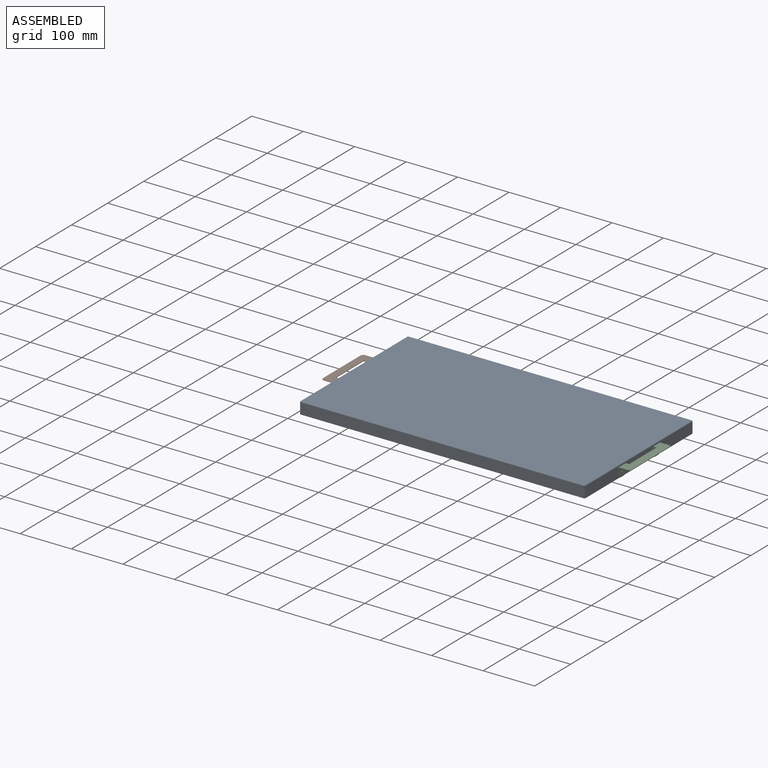
[diagram: assembled view]
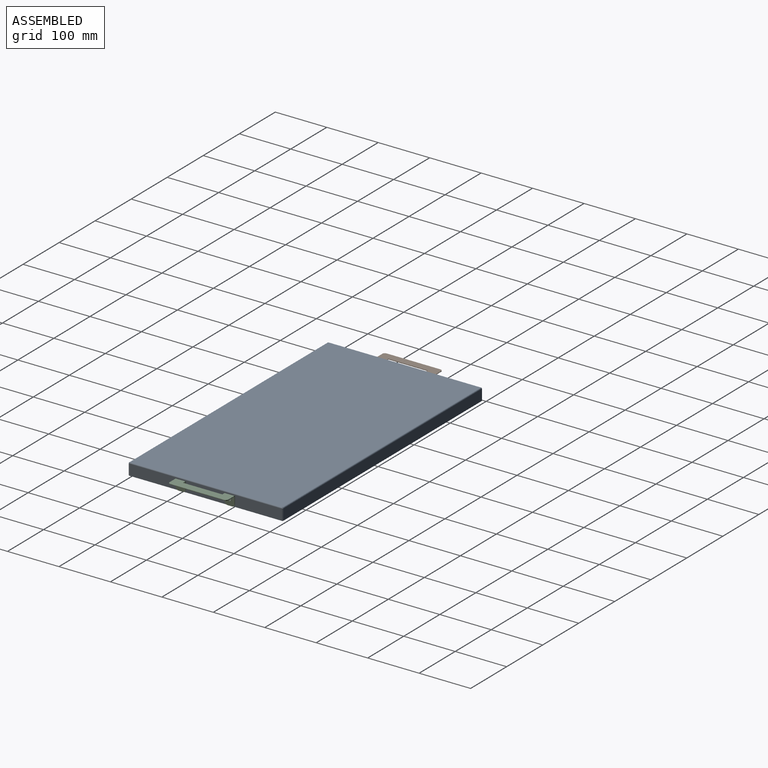
[diagram: assembled view, second angle]
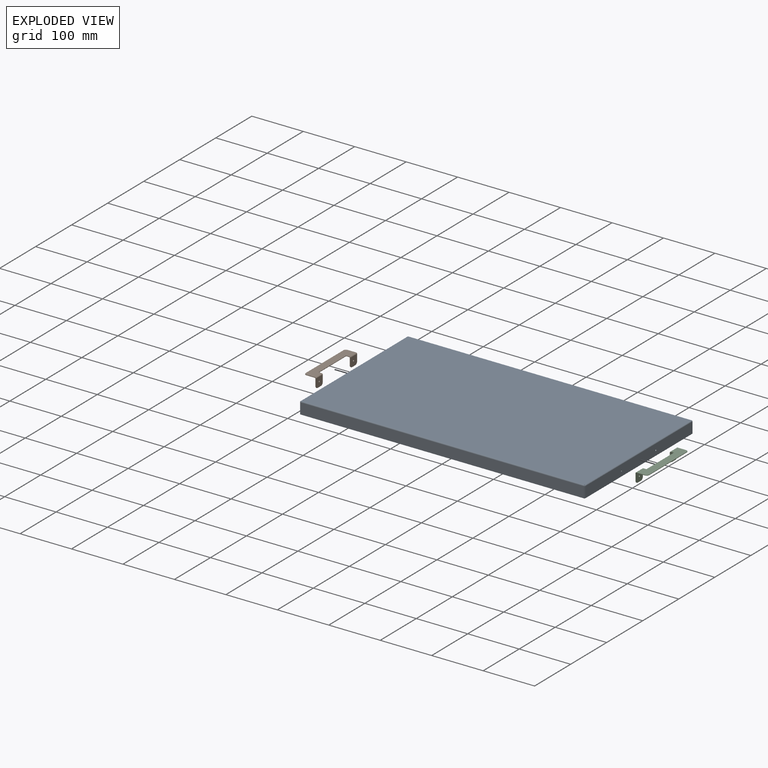
[diagram: exploded view]
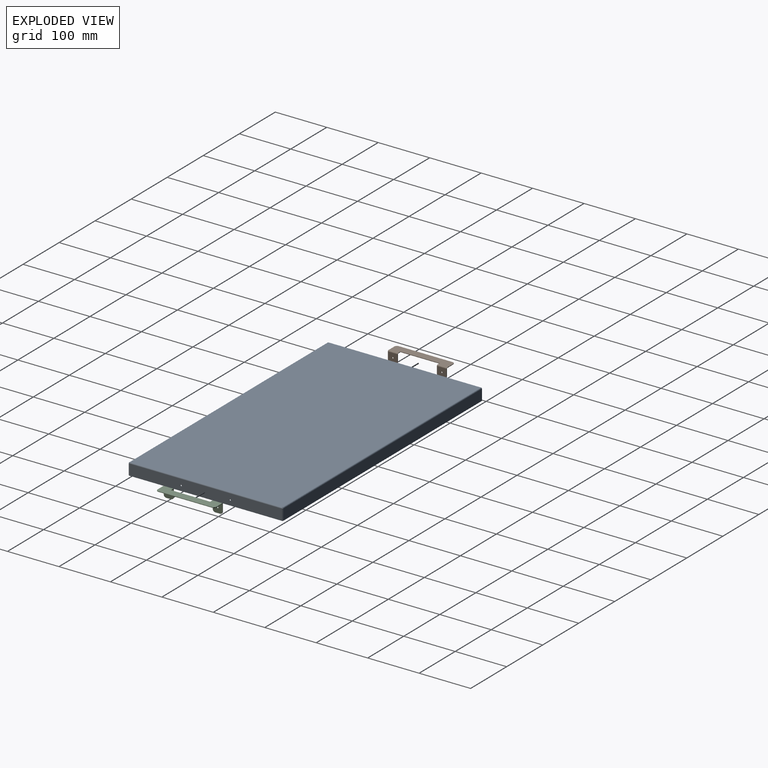
[diagram: exploded view, second angle]
ASSEMBLY  parts=3 mates=2
PART A: 46 faces, bbox 553.9x299.9x23.2 mm
  f0: plane 551.84x0.99mm, normal (0,0,1), area 546.7mm2, adj f1,f2,f3,f4
  f1: plane 21.23x0.99mm, normal (1,0,0), area 21mm2, adj f0,f3,f4,f43
  f2: plane 21.23x0.99mm, normal (-1,0,0), area 21mm2, adj f0,f3,f4,f42
  f3: plane 551.84x21.23mm, normal (0,1,0), area 11718mm2, adj f0,f1,f2,f44
  f4: plane 551.84x21.23mm, normal (0,-1,0), area 11718mm2, adj f0,f1,f2,f45
  f5: plane 549.91x295.91mm, normal (0,0,-1), area 162723.9mm2, adj f7,f8,f9,f10,f18,f29,f40,f44
  f6: plane 549.91x295.91mm, normal (0,0,1), area 162723.9mm2, adj f7,f8,f9,f10,f19,f30,f41,f45
  f7: plane 0.99x0.02mm, normal (0.71,-0.71,0), area 0mm2, adj f5,f6,f17,f27
  f8: plane 0.99x0.02mm, normal (-0.71,-0.71,0), area 0mm2, adj f5,f6,f16,f38
  f9: plane 0.99x0.02mm, normal (-0.71,0.71,0), area 0mm2, adj f5,f6,f39,f42
  f10: plane 0.99x0.02mm, normal (0.71,0.71,0), area 0mm2, adj f5,f6,f28,f43
  f11: plane 551.84x0.99mm, normal (0,0,1), area 546.7mm2, adj f12,f13,f14,f15
  f12: plane 21.23x0.99mm, normal (-1,0,0), area 21mm2, adj f11,f14,f15,f16
  f13: plane 21.23x0.99mm, normal (1,0,0), area 21mm2, adj f11,f14,f15,f17
  f14: plane 551.84x21.23mm, normal (0,-1,0), area 11718mm2, adj f11,f12,f13,f18
  f15: plane 551.84x21.23mm, normal (0,1,0), area 11718mm2, adj f11,f12,f13,f19
  f16: bspline ~1.98x1.98mm, area 2.6mm2, adj f8,f12,f18,f19
  f17: bspline ~1.98x1.98mm, area 2.6mm2, adj f7,f13,f18,f19
  f18: cylinder r=1.98mm len=551.84mm, axis (-1,0,0), area 1715.1mm2, adj f5,f14,f16,f17
  f19: cylinder r=0.99mm len=551.84mm, axis (-1,0,0), area 857.6mm2, adj f6,f15,f16,f17
  f20: plane 297.84x0.99mm, normal (0,0,1), area 295mm2, adj f21,f24,f25,f26
  f21: plane 21.23x0.99mm, normal (0,-1,0), area 21mm2, adj f20,f25,f26,f27
  f22: cylinder r=1.27mm len=2.54mm, axis (1,0,0), area 7.9mm2, adj f25,f26
  f23: cylinder r=1.27mm len=2.54mm, axis (1,0,0), area 7.9mm2, adj f25,f26
  f24: plane 21.23x0.99mm, normal (0,1,0), area 21mm2, adj f20,f25,f26,f28
  f25: plane 297.84x21.23mm, normal (1,0,0), area 6314.3mm2, adj f20,f21,f22,f23,f24,f29
  f26: plane 297.84x21.23mm, normal (-1,0,0), area 6314.3mm2, adj f20,f21,f22,f23,f24,f30
  f27: bspline ~1.98x1.98mm, area 2.6mm2, adj f7,f21,f29,f30
  f28: bspline ~1.98x1.98mm, area 2.6mm2, adj f10,f24,f29,f30
  f29: cylinder r=1.98mm len=297.84mm, axis (0,-1,0), area 924.7mm2, adj f5,f25,f27,f28
  f30: cylinder r=0.99mm len=297.84mm, axis (0,-1,0), area 462.3mm2, adj f6,f26,f27,f28
  f31: plane 297.84x0.99mm, normal (0,0,1), area 295mm2, adj f32,f35,f36,f37
  f32: plane 21.23x0.99mm, normal (0,1,0), area 21mm2, adj f31,f36,f37,f39
  f33: cylinder r=1.27mm len=2.54mm, axis (1,0,0), area 7.9mm2, adj f36,f37
  f34: cylinder r=1.27mm len=2.54mm, axis (1,0,0), area 7.9mm2, adj f36,f37
  f35: plane 21.23x0.99mm, normal (0,-1,0), area 21mm2, adj f31,f36,f37,f38
  f36: plane 297.84x21.23mm, normal (-1,0,0), area 6314.3mm2, adj f31,f32,f33,f34,f35,f40
  f37: plane 297.84x21.23mm, normal (1,0,0), area 6314.3mm2, adj f31,f32,f33,f34,f35,f41
  f38: bspline ~1.98x1.98mm, area 2.6mm2, adj f8,f35,f40,f41
  f39: bspline ~1.98x1.98mm, area 2.6mm2, adj f9,f32,f40,f41
  f40: cylinder r=1.98mm len=297.84mm, axis (0,-1,0), area 924.7mm2, adj f5,f36,f38,f39
  f41: cylinder r=0.99mm len=297.84mm, axis (0,-1,0), area 462.3mm2, adj f6,f37,f38,f39
  f42: bspline ~1.98x1.98mm, area 2.6mm2, adj f2,f9,f44,f45
  f43: bspline ~1.98x1.98mm, area 2.6mm2, adj f1,f10,f44,f45
  f44: cylinder r=1.98mm len=551.84mm, axis (-1,0,0), area 1715.1mm2, adj f3,f5,f42,f43
  f45: cylinder r=0.99mm len=551.84mm, axis (-1,0,0), area 857.6mm2, adj f4,f6,f42,f43
PART B: 34 faces, bbox 23.2x114.3x20 mm
  f0: plane 5.96x0.99mm, normal (0,-1,0), area 5.9mm2, adj f5,f6,f7,f19
  f1: plane 16.15x0.99mm, normal (0,1,0), area 16mm2, adj f6,f7,f8,f18
  f2: plane 104.14x0.99mm, normal (-1,0,0), area 103.2mm2, adj f6,f7,f8,f9
  f3: plane 16.15x0.99mm, normal (0,-1,0), area 16mm2, adj f6,f7,f9,f31
  f4: plane 5.96x0.99mm, normal (0,1,0), area 5.9mm2, adj f5,f6,f7,f30
  f5: plane 76.2x0.99mm, normal (1,0,0), area 75.5mm2, adj f0,f4,f6,f7
  f6: plane 114.3x21.23mm, normal (0,0,1), area 1962.1mm2, adj f0,f1,f2,f3,f4,f5,f8,f9
  f7: plane 114.3x21.23mm, normal (0,0,-1), area 1962.1mm2, adj f0,f1,f2,f3,f4,f5,f8,f9
  f8: cylinder r=5.08mm len=5.08mm, axis (0,0,-1), area 7.9mm2, adj f1,f2,f6,f7
  f9: cylinder r=5.08mm len=5.08mm, axis (0,0,1), area 7.9mm2, adj f2,f3,f6,f7
  f10: plane 8.89x0.99mm, normal (0,0,-1), area 8.8mm2, adj f14,f15,f16,f17
  f11: plane 12.98x0.99mm, normal (0,1,0), area 12.9mm2, adj f14,f15,f17,f18
  f12: cylinder r=1.27mm len=2.54mm, axis (-1,0,0), area 7.9mm2, adj f14,f15
  f13: plane 12.98x0.99mm, normal (0,-1,0), area 12.9mm2, adj f14,f15,f16,f19
  f14: plane 19.05x18.06mm, normal (1,0,0), area 327.9mm2, adj f10,f11,f12,f13,f16,f17,f20
  f15: plane 19.05x18.06mm, normal (-1,0,0), area 327.9mm2, adj f10,f11,f12,f13,f16,f17,f21
  f16: cylinder r=5.08mm len=5.08mm, axis (1,0,0), area 7.9mm2, adj f10,f13,f14,f15
  f17: cylinder r=5.08mm len=5.08mm, axis (1,0,0), area 7.9mm2, adj f10,f11,f14,f15
  f18: plane 1.98x1.98mm, normal (0,1,0), area 2.3mm2, adj f1,f11,f20,f21
  f19: plane 1.98x1.98mm, normal (0,-1,0), area 2.3mm2, adj f0,f13,f20,f21
  f20: cylinder r=1.98mm len=19.05mm, axis (0,1,0), area 59.3mm2, adj f6,f14,f18,f19
  f21: cylinder r=0.99mm len=19.05mm, axis (0,1,0), area 29.6mm2, adj f7,f15,f18,f19
  f22: plane 12.98x0.99mm, normal (0,-1,0), area 12.9mm2, adj f26,f27,f28,f31
  f23: plane 8.89x0.99mm, normal (0,0,-1), area 8.8mm2, adj f26,f27,f28,f29
  f24: plane 12.98x0.99mm, normal (0,1,0), area 12.9mm2, adj f26,f27,f29,f30
  f25: cylinder r=1.27mm len=2.54mm, axis (-1,0,0), area 7.9mm2, adj f26,f27
  f26: plane 19.05x18.06mm, normal (1,0,0), area 327.9mm2, adj f22,f23,f24,f25,f28,f29,f32
  f27: plane 19.05x18.06mm, normal (-1,0,0), area 327.9mm2, adj f22,f23,f24,f25,f28,f29,f33
  f28: cylinder r=5.08mm len=5.08mm, axis (-1,0,0), area 7.9mm2, adj f22,f23,f26,f27
  f29: cylinder r=5.08mm len=5.08mm, axis (-1,0,0), area 7.9mm2, adj f23,f24,f26,f27
  f30: plane 1.98x1.98mm, normal (0,1,0), area 2.3mm2, adj f4,f24,f32,f33
  f31: plane 1.98x1.98mm, normal (0,-1,0), area 2.3mm2, adj f3,f22,f32,f33
  f32: cylinder r=1.98mm len=19.05mm, axis (0,1,0), area 59.3mm2, adj f6,f26,f30,f31
  f33: cylinder r=0.99mm len=19.05mm, axis (0,1,0), area 29.6mm2, adj f7,f27,f30,f31
PART C: same geometry as B
PLACE A rot(axis=(1,0,0),180deg) t=(96.15,156.11,-58.51)mm
PLACE B t=(-192.89,213.26,-71.21)mm
PLACE C rot(axis=(0,0,1),180deg) t=(385.19,98.96,-71.21)mm
MATE fastened A.f23 <-> C.f12  axis (1,0,0) through (373.08,108.48,-71.21)mm
MATE fastened A.f23 <-> B.f25  axis (-1,0,0) through (-180.79,108.48,-71.21)mm
